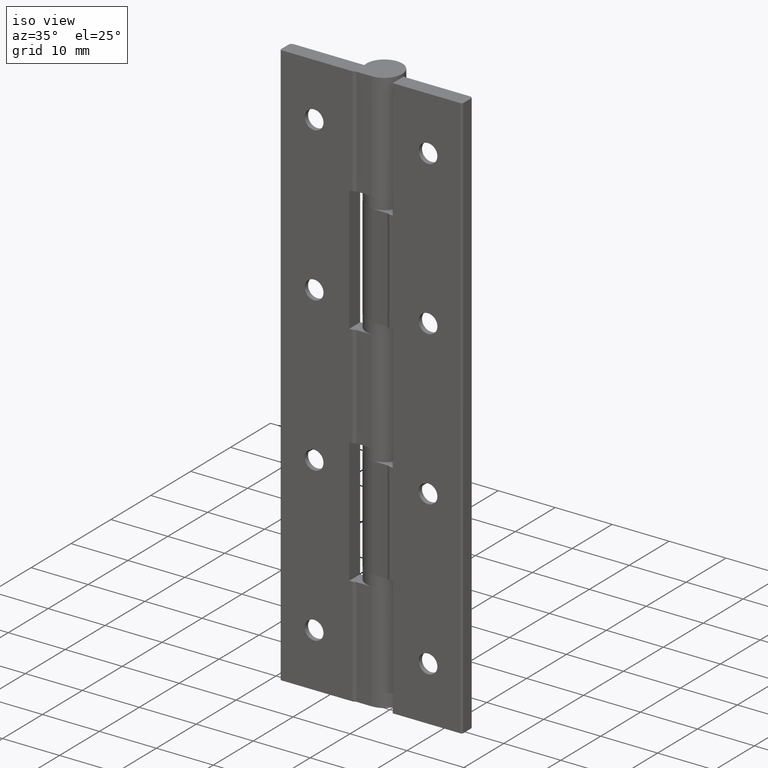
[diagram: clean part render]
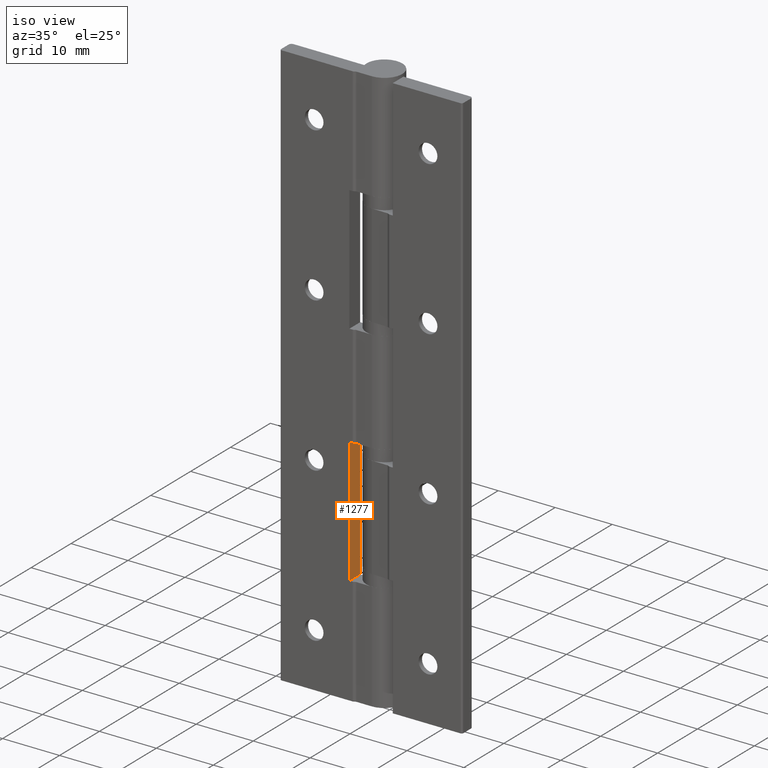
[diagram: same view with one face highlighted and labeled with its STEP entity id]
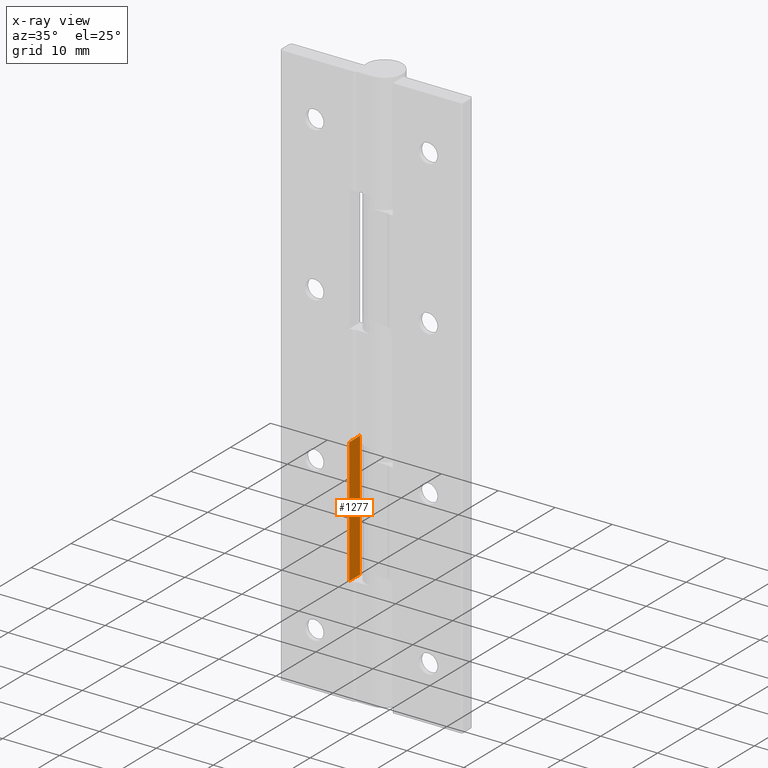
[diagram: x-ray of the same camera — body ghosted, the highlighted face saturated]
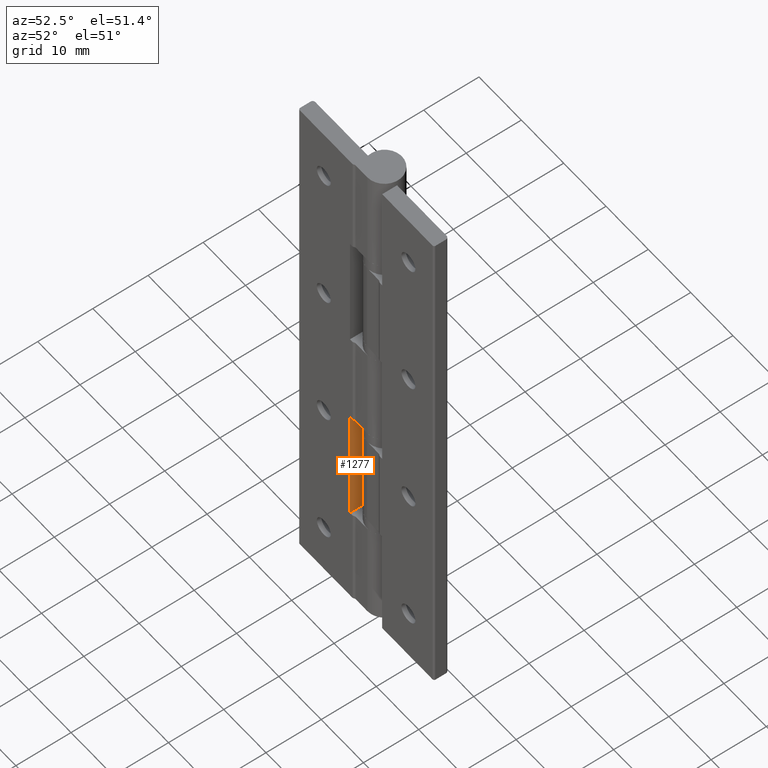
[diagram: same view with one face highlighted and labeled with its STEP entity id]
A machine part, iso view. The second image highlights one B-rep face of the part: STEP entity #1277.
The next image is the same camera in x-ray: the body ghosted, the highlighted face saturated — about 0% of this face is hidden behind the body in this view.
A second angle (auxiliary view) of the same face is appended — the face is thin or edge-on in the first view.
In plain terms, the highlighted planar face has unit normal (-1, 0, 0).
Its self-contained STEP definition (entity closure, byte-faithful):
#228=FACE_OUTER_BOUND('',#303,.T.);
#303=EDGE_LOOP('',(#907,#908,#909,#910));
#430=LINE('',#1946,#521);
#431=LINE('',#1948,#522);
#432=LINE('',#1950,#523);
#433=LINE('',#1951,#524);
#521=VECTOR('',#1525,22.);
#522=VECTOR('',#1526,2.7);
#523=VECTOR('',#1527,22.);
#524=VECTOR('',#1528,2.7);
#612=VERTEX_POINT('',#1944);
#613=VERTEX_POINT('',#1945);
#614=VERTEX_POINT('',#1947);
#615=VERTEX_POINT('',#1949);
#738=EDGE_CURVE('',#612,#613,#430,.T.);
#739=EDGE_CURVE('',#612,#614,#431,.T.);
#740=EDGE_CURVE('',#615,#614,#432,.T.);
#741=EDGE_CURVE('',#615,#613,#433,.T.);
#907=ORIENTED_EDGE('',*,*,#738,.F.);
#908=ORIENTED_EDGE('',*,*,#739,.T.);
#909=ORIENTED_EDGE('',*,*,#740,.F.);
#910=ORIENTED_EDGE('',*,*,#741,.T.);
#1245=PLANE('',#1357);
#1277=ADVANCED_FACE('',(#228),#1245,.F.);
#1357=AXIS2_PLACEMENT_3D('',#1943,#1523,#1524);
#1523=DIRECTION('center_axis',(-1.,0.,2.01858731750028E-16));
#1524=DIRECTION('ref_axis',(2.22044604925031E-16,0.,1.));
#1525=DIRECTION('',(-2.01858731750028E-16,0.,-1.));
#1526=DIRECTION('',(0.,-1.,0.));
#1527=DIRECTION('',(2.01858731750028E-16,1.40067632319072E-32,1.));
#1528=DIRECTION('',(0.,1.,0.));
#1943=CARTESIAN_POINT('Origin',(-3.80000000000001,2.7,-81.));
#1944=CARTESIAN_POINT('',(-3.80000000000001,2.7,-59.));
#1945=CARTESIAN_POINT('',(-3.80000000000001,2.7,-81.));
#1946=CARTESIAN_POINT('',(-3.80000000000001,2.7,-40.5));
#1947=CARTESIAN_POINT('',(-3.80000000000001,1.11022302462516E-15,-59.));
#1948=CARTESIAN_POINT('',(-3.80000000000001,2.7,-59.));
#1949=CARTESIAN_POINT('',(-3.80000000000001,1.11022302462516E-15,-81.));
#1950=CARTESIAN_POINT('',(-3.80000000000001,8.32667268468867E-16,-40.5));
#1951=CARTESIAN_POINT('',(-3.80000000000001,2.7,-81.));